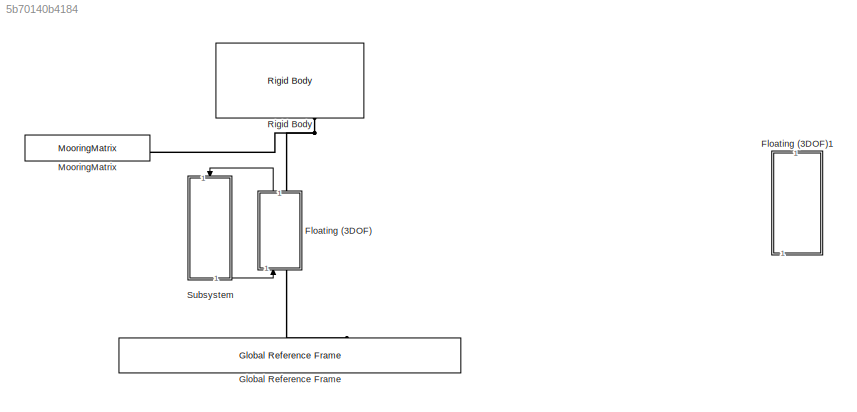
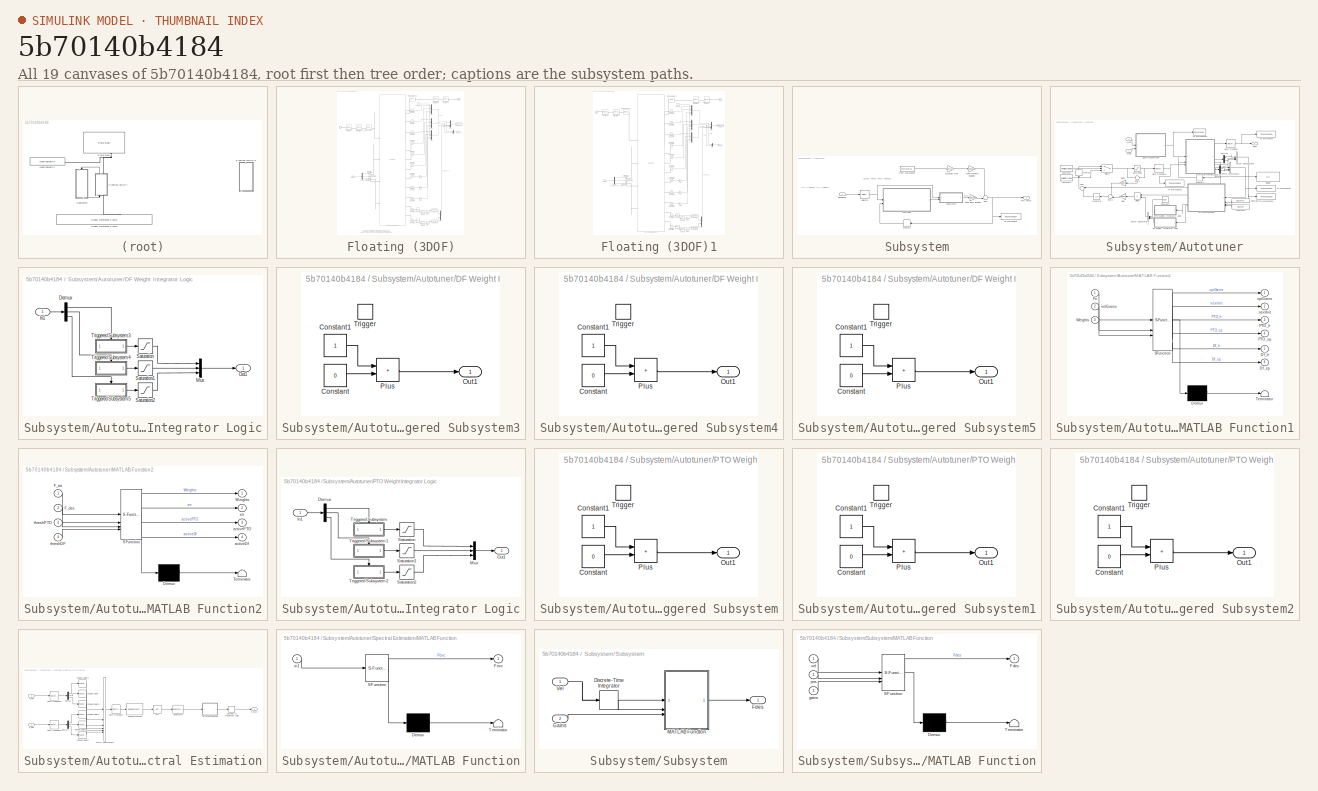
[diagram: thumbnail index - all 19 canvases of the model, root first then tree order]
MODEL slx_5b70140b4184
KIND model
CONFIG AbsTol = auto
CONFIG EnableMultiTasking = off
CONFIG FixedStep = 0.01
CONFIG MaxStep = 0.01
CONFIG MinStep = auto
CONFIG RelTol = 1e-3
CONFIG SampleTimeConstraint = Unconstrained
CONFIG SolverName = ode45
CONFIG StartTime = 0
CONFIG StopTime = 1200
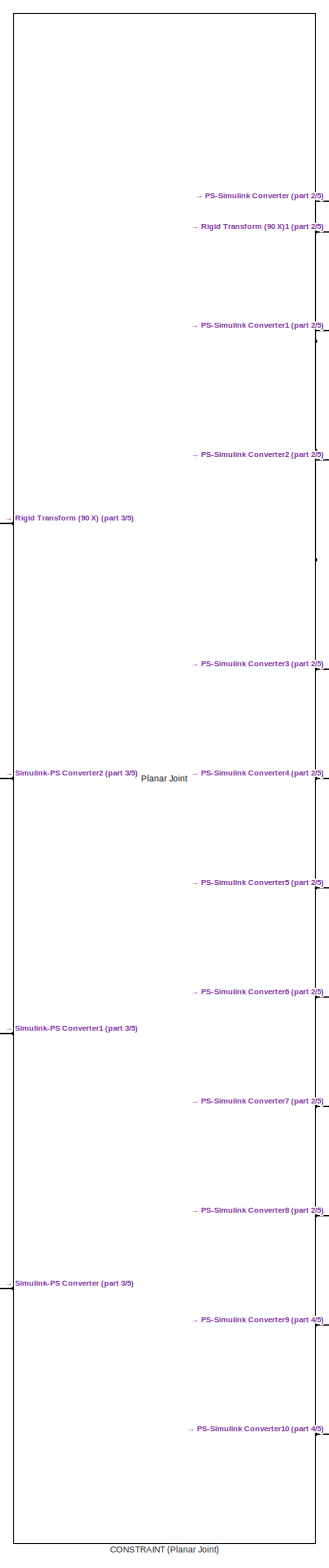
[diagram: Floating (3DOF) - part 1/5, center side, full height]
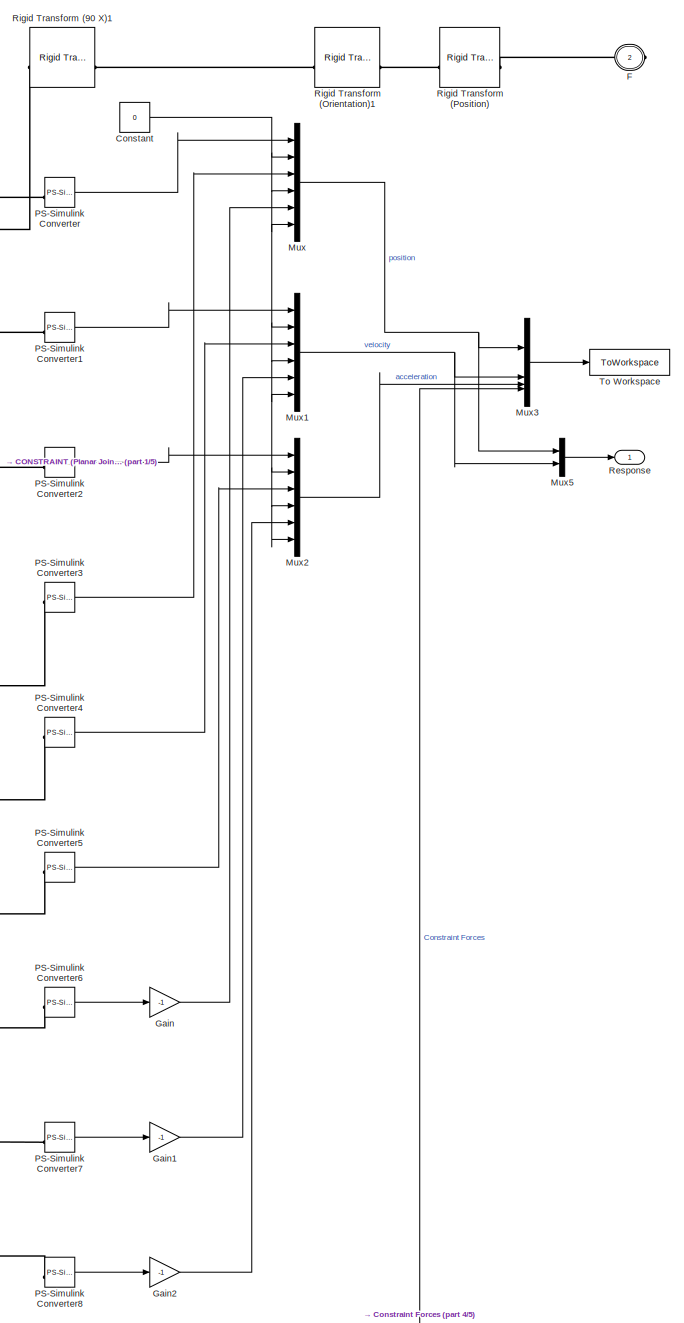
[diagram: Floating (3DOF) - part 2/5, right side, full height]
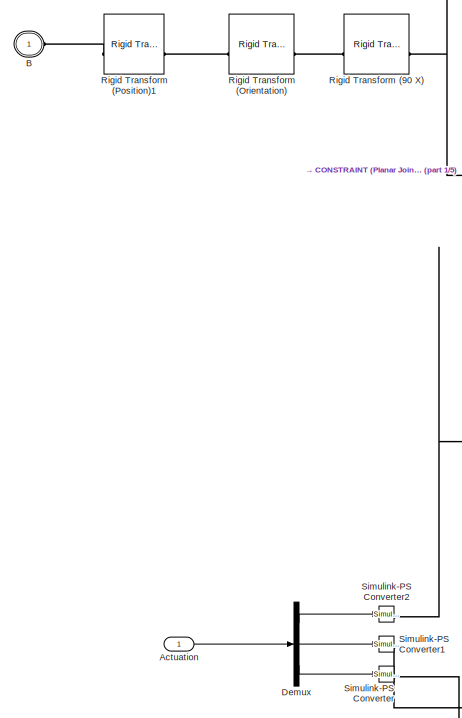
[diagram: Floating (3DOF) - part 3/5, middle left region]
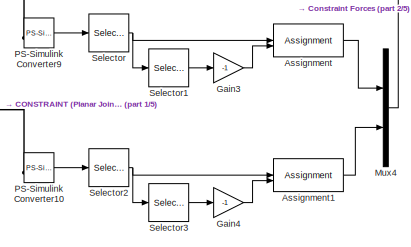
[diagram: Floating (3DOF) - part 4/5, bottom right region]
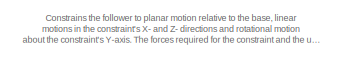
[diagram: Floating (3DOF) - part 5/5, bottom left region]
BLOCK [SubSystem] Floating (3DOF)
  AncestorBlock = WECSim_Lib_Constraints/Floating (3DOF)
  AttributesFormatString = %<constraint>
  LibrarySourceBlock = WECSim_Lib_Constraints/Floating (3DOF)
  NameLocation = right
BLOCK [Inport] Floating (3DOF)/Actuation
BLOCK [Assignment] Floating (3DOF)/Assignment
  DiagnosticForDimensions = Warning
  IndexOptions = Index vector (dialog)
  Indices = 2
  OutputSizes = 1
BLOCK [Assignment] Floating (3DOF)/Assignment1
  DiagnosticForDimensions = Warning
  IndexOptions = Index vector (dialog)
  Indices = 2
  OutputSizes = 1
BLOCK [PMIOPort] Floating (3DOF)/B
  Side = Left
BLOCK [Reference] Floating (3DOF)/CONSTRAINT (Planar Joint)  REF=sm_lib/Joints/Planar Joint
  SourceBlock = sm_lib/Joints/Planar Joint
  SourceType = Planar Joint
BLOCK [Constant] Floating (3DOF)/Constant
  Value = 0
BLOCK [Demux] Floating (3DOF)/Demux
  Outputs = 3
BLOCK [PMIOPort] Floating (3DOF)/F
  Port = 2
  Side = Right
BLOCK [Gain] Floating (3DOF)/Gain
  Gain = -1
BLOCK [Gain] Floating (3DOF)/Gain1
  Gain = -1
BLOCK [Gain] Floating (3DOF)/Gain2
  Gain = -1
BLOCK [Gain] Floating (3DOF)/Gain3
  Gain = -1
BLOCK [Gain] Floating (3DOF)/Gain4
  Gain = -1
BLOCK [Mux] Floating (3DOF)/Mux
  DisplayOption = bar
  Inputs = 6
BLOCK [Mux] Floating (3DOF)/Mux1
  DisplayOption = bar
  Inputs = 6
BLOCK [Mux] Floating (3DOF)/Mux2
  DisplayOption = bar
  Inputs = 6
BLOCK [Mux] Floating (3DOF)/Mux3
  DisplayOption = bar
BLOCK [Mux] Floating (3DOF)/Mux4
  DisplayOption = bar
  Inputs = 2
BLOCK [Mux] Floating (3DOF)/Mux5
  DisplayOption = bar
  Inputs = 2
BLOCK [Reference] Floating (3DOF)/PS-Simulink Converter  REF=nesl_utility/PS-Simulink
Converter
  SourceBlock = nesl_utility/PS-Simulink\nConverter
  SourceType = PS-Simulink\nConverter
BLOCK [Reference] Floating (3DOF)/PS-Simulink Converter1  REF=nesl_utility/PS-Simulink
Converter
  SourceBlock = nesl_utility/PS-Simulink\nConverter
  SourceType = PS-Simulink\nConverter
BLOCK [Reference] Floating (3DOF)/PS-Simulink Converter10  REF=nesl_utility/PS-Simulink
Converter
  SourceBlock = nesl_utility/PS-Simulink\nConverter
  SourceType = PS-Simulink\nConverter
BLOCK [Reference] Floating (3DOF)/PS-Simulink Converter2  REF=nesl_utility/PS-Simulink
Converter
  SourceBlock = nesl_utility/PS-Simulink\nConverter
  SourceType = PS-Simulink\nConverter
BLOCK [Reference] Floating (3DOF)/PS-Simulink Converter3  REF=nesl_utility/PS-Simulink
Converter
  SourceBlock = nesl_utility/PS-Simulink\nConverter
  SourceType = PS-Simulink\nConverter
BLOCK [Reference] Floating (3DOF)/PS-Simulink Converter4  REF=nesl_utility/PS-Simulink
Converter
  SourceBlock = nesl_utility/PS-Simulink\nConverter
  SourceType = PS-Simulink\nConverter
BLOCK [Reference] Floating (3DOF)/PS-Simulink Converter5  REF=nesl_utility/PS-Simulink
Converter
  SourceBlock = nesl_utility/PS-Simulink\nConverter
  SourceType = PS-Simulink\nConverter
BLOCK [Reference] Floating (3DOF)/PS-Simulink Converter6  REF=nesl_utility/PS-Simulink
Converter
  SourceBlock = nesl_utility/PS-Simulink\nConverter
  SourceType = PS-Simulink\nConverter
BLOCK [Reference] Floating (3DOF)/PS-Simulink Converter7  REF=nesl_utility/PS-Simulink
Converter
  SourceBlock = nesl_utility/PS-Simulink\nConverter
  SourceType = PS-Simulink\nConverter
BLOCK [Reference] Floating (3DOF)/PS-Simulink Converter8  REF=nesl_utility/PS-Simulink
Converter
  SourceBlock = nesl_utility/PS-Simulink\nConverter
  SourceType = PS-Simulink\nConverter
BLOCK [Reference] Floating (3DOF)/PS-Simulink Converter9  REF=nesl_utility/PS-Simulink
Converter
  SourceBlock = nesl_utility/PS-Simulink\nConverter
  SourceType = PS-Simulink\nConverter
BLOCK [Outport] Floating (3DOF)/Response
BLOCK [Reference] Floating (3DOF)/Rigid Transform (90 X)  REF=sm_lib/Frames and
Transforms/Rigid
Transform
  SourceBlock = sm_lib/Frames and\nTransforms/Rigid\nTransform
  SourceType = Rigid\nTransform
BLOCK [Reference] Floating (3DOF)/Rigid Transform (90 X)1  REF=sm_lib/Frames and
Transforms/Rigid
Transform
  SourceBlock = sm_lib/Frames and\nTransforms/Rigid\nTransform
  SourceType = Rigid\nTransform
BLOCK [Reference] Floating (3DOF)/Rigid Transform (Orientation)  REF=sm_lib/Frames and
Transforms/Rigid
Transform
  SourceBlock = sm_lib/Frames and\nTransforms/Rigid\nTransform
  SourceType = Rigid\nTransform
BLOCK [Reference] Floating (3DOF)/Rigid Transform (Orientation)1  REF=sm_lib/Frames and
Transforms/Rigid
Transform
  SourceBlock = sm_lib/Frames and\nTransforms/Rigid\nTransform
  SourceType = Rigid\nTransform
BLOCK [Reference] Floating (3DOF)/Rigid Transform (Position)  REF=sm_lib/Frames and
Transforms/Rigid
Transform
  SourceBlock = sm_lib/Frames and\nTransforms/Rigid\nTransform
  SourceType = Rigid\nTransform
BLOCK [Reference] Floating (3DOF)/Rigid Transform (Position)1  REF=sm_lib/Frames and
Transforms/Rigid
Transform
  SourceBlock = sm_lib/Frames and\nTransforms/Rigid\nTransform
  SourceType = Rigid\nTransform
BLOCK [Selector] Floating (3DOF)/Selector
  IndexOptions = Index vector (dialog)
  Indices = [1 3 2]
  InputPortWidth = 3
  OutputSizes = 1
BLOCK [Selector] Floating (3DOF)/Selector1
  IndexOptions = Index vector (dialog)
  Indices = [2]
  InputPortWidth = 3
  OutputSizes = 1
BLOCK [Selector] Floating (3DOF)/Selector2
  IndexOptions = Index vector (dialog)
  Indices = [1 3 2]
  InputPortWidth = 3
  OutputSizes = 1
BLOCK [Selector] Floating (3DOF)/Selector3
  IndexOptions = Index vector (dialog)
  Indices = [2]
  InputPortWidth = 3
  OutputSizes = 1
BLOCK [Reference] Floating (3DOF)/Simulink-PS Converter  REF=nesl_utility/Simulink-PS
Converter
  SourceBlock = nesl_utility/Simulink-PS\nConverter
  SourceType = Simulink-PS\nConverter
BLOCK [Reference] Floating (3DOF)/Simulink-PS Converter1  REF=nesl_utility/Simulink-PS
Converter
  SourceBlock = nesl_utility/Simulink-PS\nConverter
  SourceType = Simulink-PS\nConverter
BLOCK [Reference] Floating (3DOF)/Simulink-PS Converter2  REF=nesl_utility/Simulink-PS
Converter
  SourceBlock = nesl_utility/Simulink-PS\nConverter
  SourceType = Simulink-PS\nConverter
BLOCK [ToWorkspace] Floating (3DOF)/To Workspace
  FixptAsFi = on
  MaxDataPoints = inf
  SampleTime = simu.dtOut
  SaveFormat = Structure With Time
  VariableName = constraint1_out
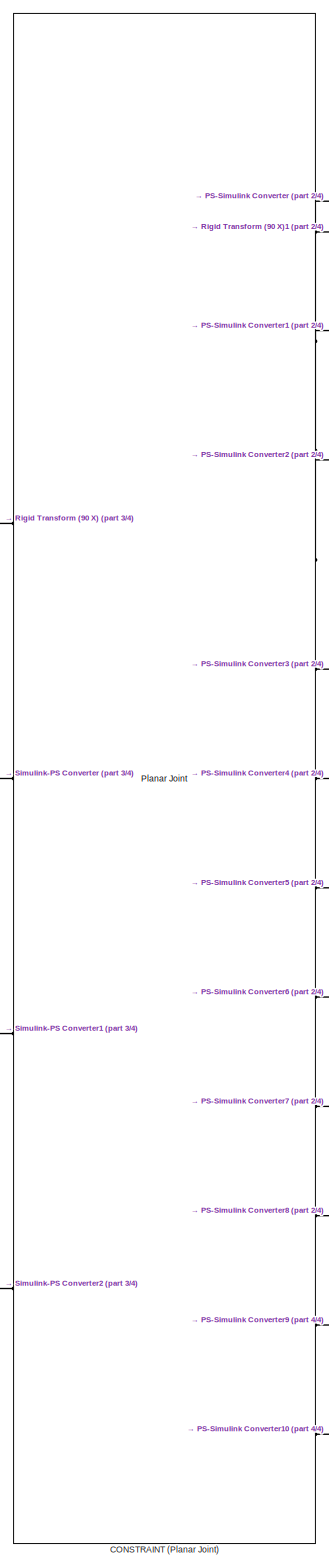
[diagram: Floating (3DOF)1 - part 1/4, center side, full height]
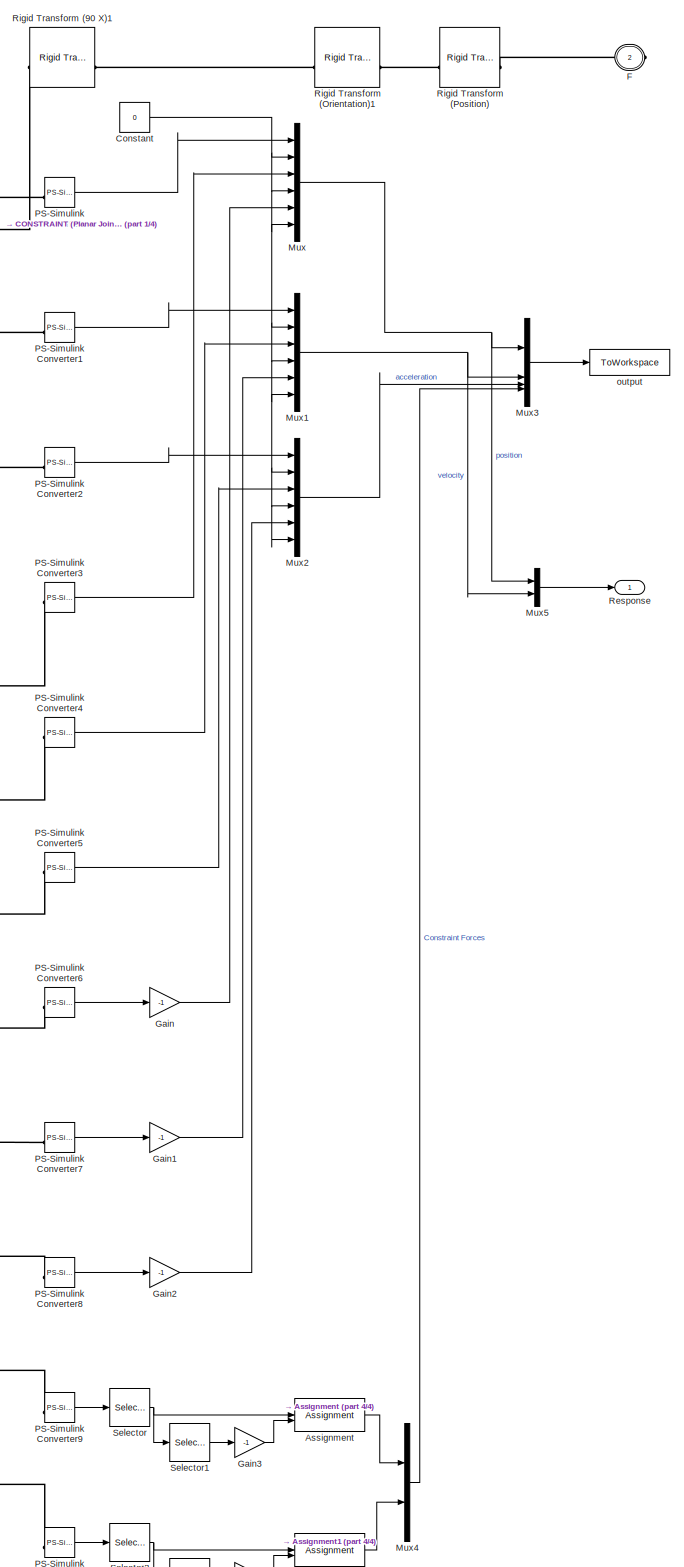
[diagram: Floating (3DOF)1 - part 2/4, right side, full height]
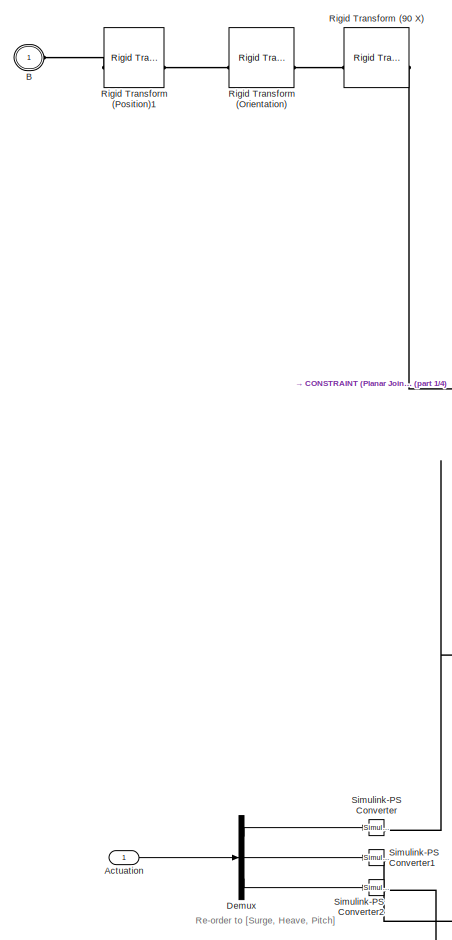
[diagram: Floating (3DOF)1 - part 3/4, middle left region]
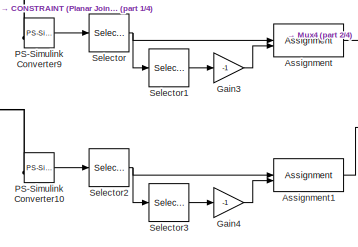
[diagram: Floating (3DOF)1 - part 4/4, bottom right region]
BLOCK [SubSystem] Floating (3DOF)1
  AncestorBlock = WECSim_Lib/Constraints/Floating (3DOF)
  AttributesFormatString = %<constraint>
  Commented = on
  LibrarySourceBlock = WECSim_Lib/Constraints/Floating (3DOF)
  NameLocation = right
BLOCK [Inport] Floating (3DOF)1/Actuation
BLOCK [Assignment] Floating (3DOF)1/Assignment
  DiagnosticForDimensions = Warning
  IndexOptions = Index vector (dialog)
  Indices = 2
  OutputSizes = 1
BLOCK [Assignment] Floating (3DOF)1/Assignment1
  DiagnosticForDimensions = Warning
  IndexOptions = Index vector (dialog)
  Indices = 2
  OutputSizes = 1
BLOCK [PMIOPort] Floating (3DOF)1/B
  Side = Left
BLOCK [Reference] Floating (3DOF)1/CONSTRAINT (Planar Joint)  REF=sm_lib/Joints/Planar Joint
  SourceBlock = sm_lib/Joints/Planar Joint
  SourceType = Planar Joint
BLOCK [Constant] Floating (3DOF)1/Constant
  Value = 0
BLOCK [Demux] Floating (3DOF)1/Demux
  Outputs = 3
BLOCK [PMIOPort] Floating (3DOF)1/F
  Port = 2
  Side = Right
BLOCK [Gain] Floating (3DOF)1/Gain
  Gain = -1
BLOCK [Gain] Floating (3DOF)1/Gain1
  Gain = -1
BLOCK [Gain] Floating (3DOF)1/Gain2
  Gain = -1
BLOCK [Gain] Floating (3DOF)1/Gain3
  Gain = -1
BLOCK [Gain] Floating (3DOF)1/Gain4
  Gain = -1
BLOCK [Mux] Floating (3DOF)1/Mux
  DisplayOption = bar
  Inputs = 6
BLOCK [Mux] Floating (3DOF)1/Mux1
  DisplayOption = bar
  Inputs = 6
BLOCK [Mux] Floating (3DOF)1/Mux2
  DisplayOption = bar
  Inputs = 6
BLOCK [Mux] Floating (3DOF)1/Mux3
  DisplayOption = bar
BLOCK [Mux] Floating (3DOF)1/Mux4
  DisplayOption = bar
  Inputs = 2
BLOCK [Mux] Floating (3DOF)1/Mux5
  DisplayOption = bar
  Inputs = 2
BLOCK [Reference] Floating (3DOF)1/PS-Simulink Converter  REF=nesl_utility/PS-Simulink
Converter
  SourceBlock = nesl_utility/PS-Simulink\nConverter
  SourceType = PS-Simulink\nConverter
BLOCK [Reference] Floating (3DOF)1/PS-Simulink Converter1  REF=nesl_utility/PS-Simulink
Converter
  SourceBlock = nesl_utility/PS-Simulink\nConverter
  SourceType = PS-Simulink\nConverter
BLOCK [Reference] Floating (3DOF)1/PS-Simulink Converter10  REF=nesl_utility/PS-Simulink
Converter
  SourceBlock = nesl_utility/PS-Simulink\nConverter
  SourceType = PS-Simulink\nConverter
BLOCK [Reference] Floating (3DOF)1/PS-Simulink Converter2  REF=nesl_utility/PS-Simulink
Converter
  SourceBlock = nesl_utility/PS-Simulink\nConverter
  SourceType = PS-Simulink\nConverter
BLOCK [Reference] Floating (3DOF)1/PS-Simulink Converter3  REF=nesl_utility/PS-Simulink
Converter
  SourceBlock = nesl_utility/PS-Simulink\nConverter
  SourceType = PS-Simulink\nConverter
BLOCK [Reference] Floating (3DOF)1/PS-Simulink Converter4  REF=nesl_utility/PS-Simulink
Converter
  SourceBlock = nesl_utility/PS-Simulink\nConverter
  SourceType = PS-Simulink\nConverter
BLOCK [Reference] Floating (3DOF)1/PS-Simulink Converter5  REF=nesl_utility/PS-Simulink
Converter
  SourceBlock = nesl_utility/PS-Simulink\nConverter
  SourceType = PS-Simulink\nConverter
BLOCK [Reference] Floating (3DOF)1/PS-Simulink Converter6  REF=nesl_utility/PS-Simulink
Converter
  SourceBlock = nesl_utility/PS-Simulink\nConverter
  SourceType = PS-Simulink\nConverter
BLOCK [Reference] Floating (3DOF)1/PS-Simulink Converter7  REF=nesl_utility/PS-Simulink
Converter
  SourceBlock = nesl_utility/PS-Simulink\nConverter
  SourceType = PS-Simulink\nConverter
BLOCK [Reference] Floating (3DOF)1/PS-Simulink Converter8  REF=nesl_utility/PS-Simulink
Converter
  SourceBlock = nesl_utility/PS-Simulink\nConverter
  SourceType = PS-Simulink\nConverter
BLOCK [Reference] Floating (3DOF)1/PS-Simulink Converter9  REF=nesl_utility/PS-Simulink
Converter
  SourceBlock = nesl_utility/PS-Simulink\nConverter
  SourceType = PS-Simulink\nConverter
BLOCK [Outport] Floating (3DOF)1/Response
BLOCK [Reference] Floating (3DOF)1/Rigid Transform (90 X)  REF=sm_lib/Frames and
Transforms/Rigid
Transform
  SourceBlock = sm_lib/Frames and\nTransforms/Rigid\nTransform
  SourceType = Rigid\nTransform
BLOCK [Reference] Floating (3DOF)1/Rigid Transform (90 X)1  REF=sm_lib/Frames and
Transforms/Rigid
Transform
  SourceBlock = sm_lib/Frames and\nTransforms/Rigid\nTransform
  SourceType = Rigid\nTransform
BLOCK [Reference] Floating (3DOF)1/Rigid Transform (Orientation)  REF=sm_lib/Frames and
Transforms/Rigid
Transform
  SourceBlock = sm_lib/Frames and\nTransforms/Rigid\nTransform
  SourceType = Rigid\nTransform
BLOCK [Reference] Floating (3DOF)1/Rigid Transform (Orientation)1  REF=sm_lib/Frames and
Transforms/Rigid
Transform
  SourceBlock = sm_lib/Frames and\nTransforms/Rigid\nTransform
  SourceType = Rigid\nTransform
BLOCK [Reference] Floating (3DOF)1/Rigid Transform (Position)  REF=sm_lib/Frames and
Transforms/Rigid
Transform
  SourceBlock = sm_lib/Frames and\nTransforms/Rigid\nTransform
  SourceType = Rigid\nTransform
BLOCK [Reference] Floating (3DOF)1/Rigid Transform (Position)1  REF=sm_lib/Frames and
Transforms/Rigid
Transform
  SourceBlock = sm_lib/Frames and\nTransforms/Rigid\nTransform
  SourceType = Rigid\nTransform
BLOCK [Selector] Floating (3DOF)1/Selector
  IndexOptions = Index vector (dialog)
  Indices = [1 3 2]
  InputPortWidth = 3
  OutputSizes = 1
BLOCK [Selector] Floating (3DOF)1/Selector1
  IndexOptions = Index vector (dialog)
  Indices = [2]
  InputPortWidth = 3
  OutputSizes = 1
BLOCK [Selector] Floating (3DOF)1/Selector2
  IndexOptions = Index vector (dialog)
  Indices = [1 3 2]
  InputPortWidth = 3
  OutputSizes = 1
BLOCK [Selector] Floating (3DOF)1/Selector3
  IndexOptions = Index vector (dialog)
  Indices = [2]
  InputPortWidth = 3
  OutputSizes = 1
BLOCK [Reference] Floating (3DOF)1/Simulink-PS Converter  REF=nesl_utility/Simulink-PS
Converter
  SourceBlock = nesl_utility/Simulink-PS\nConverter
  SourceType = Simulink-PS\nConverter
BLOCK [Reference] Floating (3DOF)1/Simulink-PS Converter1  REF=nesl_utility/Simulink-PS
Converter
  SourceBlock = nesl_utility/Simulink-PS\nConverter
  SourceType = Simulink-PS\nConverter
BLOCK [Reference] Floating (3DOF)1/Simulink-PS Converter2  REF=nesl_utility/Simulink-PS
Converter
  SourceBlock = nesl_utility/Simulink-PS\nConverter
  SourceType = Simulink-PS\nConverter
BLOCK [ToWorkspace] Floating (3DOF)1/output
  Decimation = round(simu.dtOut/simu.dt,0)
  FixptAsFi = on
  MaxDataPoints = inf
  SampleTime = -1
  SaveFormat = Structure With Time
  VariableName = constraint1_out
BLOCK [Reference] Global Reference Frame  REF=WECSim_Lib_Frames/Global Reference Frame
  NameLocation = right
  SourceBlock = WECSim_Lib_Frames/Global Reference Frame
  SourceType = Frames
BLOCK [Reference] MooringMatrix  REF=WECSim_Lib_Moorings/MooringMatrix
  AttributesFormatString = %<mooring>
  SourceBlock = WECSim_Lib_Moorings/MooringMatrix
  SourceType = Mooring Matrix
BLOCK [Reference] Rigid Body  REF=WECSim_Lib_Body_Elements/Rigid Body
  AttributesFormatString = %<body>
  NameLocation = left
  SourceBlock = WECSim_Lib_Body_Elements/Rigid Body
  SourceType = Rigid Body
BLOCK [SubSystem] Subsystem
  NameLocation = left
BLOCK [Gain] Subsystem/Actuation Gain
  Gain = OpenLoopGains
BLOCK [SubSystem] Subsystem/Autotuner
BLOCK [Constant] Subsystem/Autotuner/Constant
  Value = threshPTO
BLOCK [Constant] Subsystem/Autotuner/Constant1
  Value = threshDF
BLOCK [Constant] Subsystem/Autotuner/Constant2
  Value = WeightCase
BLOCK [Constant] Subsystem/Autotuner/Constant3
  Value = WeightAdapt
BLOCK [Constant] Subsystem/Autotuner/Constant4
  Value = [0;0;0]
BLOCK [SubSystem] Subsystem/Autotuner/DF Weight Integrator Logic
BLOCK [Demux] Subsystem/Autotuner/DF Weight Integrator Logic/Demux
  Outputs = 3
BLOCK [Inport] Subsystem/Autotuner/DF Weight Integrator Logic/In1
BLOCK [Mux] Subsystem/Autotuner/DF Weight Integrator Logic/Mux
  DisplayOption = bar
  Inputs = 3
BLOCK [Outport] Subsystem/Autotuner/DF Weight Integrator Logic/Out1
BLOCK [Saturate] Subsystem/Autotuner/DF Weight Integrator Logic/Saturation
  LowerLimit = 0
  UpperLimit = 1
BLOCK [Saturate] Subsystem/Autotuner/DF Weight Integrator Logic/Saturation1
  LowerLimit = 0
  UpperLimit = 1
BLOCK [Saturate] Subsystem/Autotuner/DF Weight Integrator Logic/Saturation2
  LowerLimit = 0
  UpperLimit = 1
BLOCK [SubSystem] Subsystem/Autotuner/DF Weight Integrator Logic/Triggered Subsystem3
  TreatAsAtomicUnit = on
BLOCK [Constant] Subsystem/Autotuner/DF Weight Integrator Logic/Triggered Subsystem3/Constant
  Value = 0
BLOCK [Constant] Subsystem/Autotuner/DF Weight Integrator Logic/Triggered Subsystem3/Constant1
BLOCK [Outport] Subsystem/Autotuner/DF Weight Integrator Logic/Triggered Subsystem3/Out1
BLOCK [Sum] Subsystem/Autotuner/DF Weight Integrator Logic/Triggered Subsystem3/Plus
  IconShape = rectangular
BLOCK [TriggerPort] Subsystem/Autotuner/DF Weight Integrator Logic/Triggered Subsystem3/Trigger
  StatesWhenEnabling = held
  VariantControl = Variant
BLOCK [SubSystem] Subsystem/Autotuner/DF Weight Integrator Logic/Triggered Subsystem4
  TreatAsAtomicUnit = on
BLOCK [Constant] Subsystem/Autotuner/DF Weight Integrator Logic/Triggered Subsystem4/Constant
  Value = 0
BLOCK [Constant] Subsystem/Autotuner/DF Weight Integrator Logic/Triggered Subsystem4/Constant1
BLOCK [Outport] Subsystem/Autotuner/DF Weight Integrator Logic/Triggered Subsystem4/Out1
BLOCK [Sum] Subsystem/Autotuner/DF Weight Integrator Logic/Triggered Subsystem4/Plus
  IconShape = rectangular
BLOCK [TriggerPort] Subsystem/Autotuner/DF Weight Integrator Logic/Triggered Subsystem4/Trigger
  StatesWhenEnabling = held
  VariantControl = Variant
BLOCK [SubSystem] Subsystem/Autotuner/DF Weight Integrator Logic/Triggered Subsystem5
  TreatAsAtomicUnit = on
BLOCK [Constant] Subsystem/Autotuner/DF Weight Integrator Logic/Triggered Subsystem5/Constant
  Value = 0
BLOCK [Constant] Subsystem/Autotuner/DF Weight Integrator Logic/Triggered Subsystem5/Constant1
BLOCK [Outport] Subsystem/Autotuner/DF Weight Integrator Logic/Triggered Subsystem5/Out1
BLOCK [Sum] Subsystem/Autotuner/DF Weight Integrator Logic/Triggered Subsystem5/Plus
  IconShape = rectangular
BLOCK [TriggerPort] Subsystem/Autotuner/DF Weight Integrator Logic/Triggered Subsystem5/Trigger
  StatesWhenEnabling = held
  VariantControl = Variant
BLOCK [Demux] Subsystem/Autotuner/Demux
  Outputs = 2
BLOCK [Demux] Subsystem/Autotuner/Demux1
  Outputs = 2
BLOCK [Display] Subsystem/Autotuner/Display
  Decimation = 1
BLOCK [Product] Subsystem/Autotuner/Divide
  Inputs = **
BLOCK [Inport] Subsystem/Autotuner/F_des
  Port = 2
BLOCK [Gain] Subsystem/Autotuner/Gain
  Gain = intGain
BLOCK [Gain] Subsystem/Autotuner/Gain1
  Gain = intGain
  NameLocation = top
BLOCK [Outport] Subsystem/Autotuner/Gains
BLOCK [Integrator] Subsystem/Autotuner/Integrator
  InitialCondition = zeros(3,3)
BLOCK [SubSystem] Subsystem/Autotuner/MATLAB Function1
  ErrorFcn = Stateflow.Translate.translate
  PermitHierarchicalResolution = ExplicitOnly
  SFBlockType = MATLAB Function
  TreatAsAtomicUnit = on
BLOCK [Demux] Subsystem/Autotuner/MATLAB Function1/ Demux 
  Outputs = 1
BLOCK [S-Function] Subsystem/Autotuner/MATLAB Function1/ SFunction 
  EnableBusSupport = on
  FunctionName = sf_sfun
  Parameters = K,Kt_h,Kt_sp,R_h,R_sp,T,Zi_frf_AT,gear_ratio_h,gear_ratio_sp,m,w
  PortCounts = [3 7]
  SFcnIsStateOwnerBlock = off
  SFunctionDeploymentMode = off
  Tag = Stateflow S-Function 4
BLOCK [Terminator] Subsystem/Autotuner/MATLAB Function1/ Terminator 
BLOCK [Outport] Subsystem/Autotuner/MATLAB Function1/Df_h
  Port = 5
BLOCK [Outport] Subsystem/Autotuner/MATLAB Function1/Df_sp
  Port = 6
BLOCK [Inport] Subsystem/Autotuner/MATLAB Function1/Fe
BLOCK [Outport] Subsystem/Autotuner/MATLAB Function1/PTO_h
  Port = 3
BLOCK [Outport] Subsystem/Autotuner/MATLAB Function1/PTO_sp
  Port = 4
BLOCK [Inport] Subsystem/Autotuner/MATLAB Function1/Weights
  Port = 3
BLOCK [Inport] Subsystem/Autotuner/MATLAB Function1/initGuess
  Port = 2
BLOCK [Outport] Subsystem/Autotuner/MATLAB Function1/nextInit
  Port = 2
  VectorParamsAs1DForOutWhenUnconnected = off
BLOCK [Outport] Subsystem/Autotuner/MATLAB Function1/optGains
  VectorParamsAs1DForOutWhenUnconnected = off
BLOCK [SubSystem] Subsystem/Autotuner/MATLAB Function2
  ErrorFcn = Stateflow.Translate.translate
  PermitHierarchicalResolution = ExplicitOnly
  SFBlockType = MATLAB Function
  TreatAsAtomicUnit = on
BLOCK [Demux] Subsystem/Autotuner/MATLAB Function2/ Demux 
  Outputs = 1
BLOCK [S-Function] Subsystem/Autotuner/MATLAB Function2/ SFunction 
  EnableBusSupport = on
  FunctionName = sf_sfun
  Parameters = adaptSlope,objCase,w
  PortCounts = [4 5]
  SFcnIsStateOwnerBlock = off
  SFunctionDeploymentMode = off
  Tag = Stateflow S-Function 5
BLOCK [Terminator] Subsystem/Autotuner/MATLAB Function2/ Terminator 
BLOCK [Inport] Subsystem/Autotuner/MATLAB Function2/F_des
  Port = 2
BLOCK [Inport] Subsystem/Autotuner/MATLAB Function2/F_tot
BLOCK [Outport] Subsystem/Autotuner/MATLAB Function2/Weights
  VectorParamsAs1DForOutWhenUnconnected = off
BLOCK [Outport] Subsystem/Autotuner/MATLAB Function2/activeDf
  Port = 4
BLOCK [Outport] Subsystem/Autotuner/MATLAB Function2/activePTO
  Port = 3
BLOCK [Outport] Subsystem/Autotuner/MATLAB Function2/err
  Port = 2
BLOCK [Inport] Subsystem/Autotuner/MATLAB Function2/threshDF
  Port = 4
BLOCK [Inport] Subsystem/Autotuner/MATLAB Function2/threshPTO
  Port = 3
BLOCK [Memory] Subsystem/Autotuner/Memory
  InheritSampleTime = on
  InitialCondition = [-1000;0;-1000;0;-200;0]
BLOCK [Memory] Subsystem/Autotuner/Memory1
  InheritSampleTime = on
  InitialCondition = [25, 0, 0; 25, 0, 0; 25, 0, 0]
  NameLocation = left
BLOCK [SubSystem] Subsystem/Autotuner/PTO Weight Integrator Logic
BLOCK [Demux] Subsystem/Autotuner/PTO Weight Integrator Logic/Demux
  Outputs = 3
BLOCK [Inport] Subsystem/Autotuner/PTO Weight Integrator Logic/In1
BLOCK [Mux] Subsystem/Autotuner/PTO Weight Integrator Logic/Mux
  DisplayOption = bar
  Inputs = 3
BLOCK [Outport] Subsystem/Autotuner/PTO Weight Integrator Logic/Out1
BLOCK [Saturate] Subsystem/Autotuner/PTO Weight Integrator Logic/Saturation
  LowerLimit = 0
  UpperLimit = 1
BLOCK [Saturate] Subsystem/Autotuner/PTO Weight Integrator Logic/Saturation1
  LowerLimit = 0
  UpperLimit = 1
BLOCK [Saturate] Subsystem/Autotuner/PTO Weight Integrator Logic/Saturation2
  LowerLimit = 0
  UpperLimit = 1
BLOCK [SubSystem] Subsystem/Autotuner/PTO Weight Integrator Logic/Triggered Subsystem
  TreatAsAtomicUnit = on
BLOCK [Constant] Subsystem/Autotuner/PTO Weight Integrator Logic/Triggered Subsystem/Constant
  Value = 0
BLOCK [Constant] Subsystem/Autotuner/PTO Weight Integrator Logic/Triggered Subsystem/Constant1
BLOCK [Outport] Subsystem/Autotuner/PTO Weight Integrator Logic/Triggered Subsystem/Out1
BLOCK [Sum] Subsystem/Autotuner/PTO Weight Integrator Logic/Triggered Subsystem/Plus
  IconShape = rectangular
BLOCK [TriggerPort] Subsystem/Autotuner/PTO Weight Integrator Logic/Triggered Subsystem/Trigger
  StatesWhenEnabling = held
  VariantControl = Variant
BLOCK [SubSystem] Subsystem/Autotuner/PTO Weight Integrator Logic/Triggered Subsystem1
  TreatAsAtomicUnit = on
BLOCK [Constant] Subsystem/Autotuner/PTO Weight Integrator Logic/Triggered Subsystem1/Constant
  Value = 0
BLOCK [Constant] Subsystem/Autotuner/PTO Weight Integrator Logic/Triggered Subsystem1/Constant1
BLOCK [Outport] Subsystem/Autotuner/PTO Weight Integrator Logic/Triggered Subsystem1/Out1
BLOCK [Sum] Subsystem/Autotuner/PTO Weight Integrator Logic/Triggered Subsystem1/Plus
  IconShape = rectangular
BLOCK [TriggerPort] Subsystem/Autotuner/PTO Weight Integrator Logic/Triggered Subsystem1/Trigger
  StatesWhenEnabling = held
  VariantControl = Variant
BLOCK [SubSystem] Subsystem/Autotuner/PTO Weight Integrator Logic/Triggered Subsystem2
  TreatAsAtomicUnit = on
BLOCK [Constant] Subsystem/Autotuner/PTO Weight Integrator Logic/Triggered Subsystem2/Constant
  Value = 0
BLOCK [Constant] Subsystem/Autotuner/PTO Weight Integrator Logic/Triggered Subsystem2/Constant1
BLOCK [Outport] Subsystem/Autotuner/PTO Weight Integrator Logic/Triggered Subsystem2/Out1
BLOCK [Sum] Subsystem/Autotuner/PTO Weight Integrator Logic/Triggered Subsystem2/Plus
  IconShape = rectangular
BLOCK [TriggerPort] Subsystem/Autotuner/PTO Weight Integrator Logic/Triggered Subsystem2/Trigger
  StatesWhenEnabling = held
  VariantControl = Variant
BLOCK [RateTransition] Subsystem/Autotuner/Rate Transition
  Deterministic = off
  OutPortSampleTime = Ts
BLOCK [RateTransition] Subsystem/Autotuner/Rate Transition4
  Deterministic = off
  InitialCondition = [25, 0, 0; 25, 0, 0; 25, 0, 0]
  OutPortSampleTime = Ts*spect.DownSample*32
BLOCK [Saturate] Subsystem/Autotuner/Saturation
  Commented = through
  LowerLimit = zeros(3,3);
  UpperLimit = [WeightCase(1,1), 0.4, 0.1; WeightCase(2,1), 0.5, 0.2; WeightCase(3,1), 0.4, 0.5];
BLOCK [SubSystem] Subsystem/Autotuner/Spectral Estimation
BLOCK [ComplexToMagnitudeAngle] Subsystem/Autotuner/Spectral Estimation/Complex to Magnitude-Angle
  Commented = through
  Output = Magnitude
BLOCK [Demux] Subsystem/Autotuner/Spectral Estimation/Demux
  Outputs = 3
BLOCK [Demux] Subsystem/Autotuner/Spectral Estimation/Demux1
  Outputs = 3
BLOCK [Reference] Subsystem/Autotuner/Spectral Estimation/FFT  REF=dspxfrm3/FFT
  SourceBlock = dspxfrm3/FFT
  SourceType = FFT
BLOCK [Inport] Subsystem/Autotuner/Spectral Estimation/F_des
  Port = 2
BLOCK [Outport] Subsystem/Autotuner/Spectral Estimation/F_excH
  VectorParamsAs1DForOutWhenUnconnected = off
BLOCK [SubSystem] Subsystem/Autotuner/Spectral Estimation/MATLAB Function
  ErrorFcn = Stateflow.Translate.translate
  PermitHierarchicalResolution = ExplicitOnly
  SFBlockType = MATLAB Function
  TreatAsAtomicUnit = on
BLOCK [Demux] Subsystem/Autotuner/Spectral Estimation/MATLAB Function/ Demux 
  Outputs = 1
BLOCK [S-Function] Subsystem/Autotuner/Spectral Estimation/MATLAB Function/ SFunction 
  EnableBusSupport = on
  FunctionName = sf_sfun
  Parameters = Zi_frf_AT
  PortCounts = [1 2]
  SFcnIsStateOwnerBlock = off
  SFunctionDeploymentMode = off
  Tag = Stateflow S-Function 3
BLOCK [Terminator] Subsystem/Autotuner/Spectral Estimation/MATLAB Function/ Terminator 
BLOCK [Outport] Subsystem/Autotuner/Spectral Estimation/MATLAB Function/Fexc
  VectorParamsAs1DForOutWhenUnconnected = off
BLOCK [Inport] Subsystem/Autotuner/Spectral Estimation/MATLAB Function/in1
BLOCK [RateTransition] Subsystem/Autotuner/Spectral Estimation/Rate Transition1
  Deterministic = off
  OutPortSampleTime = Ts*spect.DownSample
BLOCK [RateTransition] Subsystem/Autotuner/Spectral Estimation/Rate Transition2
  Deterministic = off
  OutPortSampleTime = Ts*spect.DownSample
BLOCK [RateTransition] Subsystem/Autotuner/Spectral Estimation/Rate Transition4
  Deterministic = off
  OutPortSampleTime = Ts*spect.DownSample*32
BLOCK [Reference] Subsystem/Autotuner/Spectral Estimation/Submatrix  REF=matrix_library/Submatrix
  SourceBlock = matrix_library/Submatrix
  SourceType = Submatrix
BLOCK [Reference] Subsystem/Autotuner/Spectral Estimation/Tapped Delay  REF=simulink/Discrete/Tapped Delay
  SourceBlock = simulink/Discrete/Tapped Delay
  SourceType = Tapped Delay Line
BLOCK [Reference] Subsystem/Autotuner/Spectral Estimation/Tapped Delay1  REF=simulink/Discrete/Tapped Delay
  SourceBlock = simulink/Discrete/Tapped Delay
  SourceType = Tapped Delay Line
BLOCK [Reference] Subsystem/Autotuner/Spectral Estimation/Tapped Delay2  REF=simulink/Discrete/Tapped Delay
  SourceBlock = simulink/Discrete/Tapped Delay
  SourceType = Tapped Delay Line
BLOCK [Reference] Subsystem/Autotuner/Spectral Estimation/Tapped Delay3  REF=simulink/Discrete/Tapped Delay
  SourceBlock = simulink/Discrete/Tapped Delay
  SourceType = Tapped Delay Line
BLOCK [Reference] Subsystem/Autotuner/Spectral Estimation/Tapped Delay4  REF=simulink/Discrete/Tapped Delay
  SourceBlock = simulink/Discrete/Tapped Delay
  SourceType = Tapped Delay Line
BLOCK [Reference] Subsystem/Autotuner/Spectral Estimation/Tapped Delay5  REF=simulink/Discrete/Tapped Delay
  SourceBlock = simulink/Discrete/Tapped Delay
  SourceType = Tapped Delay Line
BLOCK [Inport] Subsystem/Autotuner/Spectral Estimation/V_enc
BLOCK [Concatenate] Subsystem/Autotuner/Spectral Estimation/Vector Concatenate
  ConcatenateDimension = 2
  Mode = Multidimensional array
  NumInputs = 6
BLOCK [Reference] Subsystem/Autotuner/Spectral Estimation/Window Function  REF=dspsigops/Window
Function
  SourceBlock = dspsigops/Window\nFunction
  SourceType = Window Function
BLOCK [Sum] Subsystem/Autotuner/Sum
  Inputs = |++
BLOCK [Sum] Subsystem/Autotuner/Sum1
  Inputs = -+
  NameLocation = left
BLOCK [Sum] Subsystem/Autotuner/Sum2
  Inputs = ++|
  NameLocation = top
BLOCK [Switch] Subsystem/Autotuner/Switch
  Criteria = u2 > Threshold
  InputSameDT = off
  SaturateOnIntegerOverflow = off
BLOCK [ToWorkspace] Subsystem/Autotuner/To Workspace
  FixptAsFi = on
  MaxDataPoints = inf
  SampleTime = -1
  SaveFormat = Timeseries
  VariableName = gains
BLOCK [ToWorkspace] Subsystem/Autotuner/To Workspace1
  FixptAsFi = on
  MaxDataPoints = inf
  SampleTime = -1
  SaveFormat = Timeseries
  VariableName = F_PTO
BLOCK [ToWorkspace] Subsystem/Autotuner/To Workspace2
  FixptAsFi = on
  MaxDataPoints = inf
  SampleTime = -1
  SaveFormat = Timeseries
  VariableName = F_TOT
BLOCK [ToWorkspace] Subsystem/Autotuner/To Workspace3
  FixptAsFi = on
  MaxDataPoints = inf
  SampleTime = -1
  SaveFormat = Timeseries
  VariableName = WEIGHTS
BLOCK [ToWorkspace] Subsystem/Autotuner/To Workspace6
  FixptAsFi = on
  MaxDataPoints = inf
  SampleTime = -1
  SaveFormat = Timeseries
  VariableName = FexcOut
BLOCK [Inport] Subsystem/Autotuner/V_enc
BLOCK [Concatenate] Subsystem/Autotuner/Vector Concatenate
  NumInputs = 3
BLOCK [Concatenate] Subsystem/Autotuner/Vector Concatenate1
  NumInputs = 3
BLOCK [Concatenate] Subsystem/Autotuner/Vector Concatenate2
  ConcatenateDimension = 2
  Mode = Multidimensional array
  NumInputs = 3
BLOCK [Gain] Subsystem/Feed Back Enable?
  Gain = FBEnable
BLOCK [Gain] Subsystem/Feed Forward Enable?
  Gain = FFEnable
BLOCK [FromWorkspace] Subsystem/From Workspace
  VariableName = multisine
BLOCK [Memory] Subsystem/Memory
BLOCK [Outport] Subsystem/PTO Force
BLOCK [Inport] Subsystem/Response
BLOCK [Selector] Subsystem/Selector
  IndexOptions = Index vector (dialog)
  Indices = [7 9 11]
  InputPortWidth = 12
  OutputSizes = 1
BLOCK [SubSystem] Subsystem/Subsystem
BLOCK [DiscreteIntegrator] Subsystem/Subsystem/Discrete-Time Integrator
  ICPrevOutput = DiscIntNeverNeededParam
  ICPrevScaledInput = DiscIntNeverNeededParam
  InitialCondition = [0;0;0]
  InitialConditionSetting = Auto
  SampleTime = -1
BLOCK [Outport] Subsystem/Subsystem/Fdes
BLOCK [Inport] Subsystem/Subsystem/Gains
  Port = 2
BLOCK [SubSystem] Subsystem/Subsystem/MATLAB Function
  ErrorFcn = Stateflow.Translate.translate
  PermitHierarchicalResolution = ExplicitOnly
  SFBlockType = MATLAB Function
  TreatAsAtomicUnit = on
BLOCK [Demux] Subsystem/Subsystem/MATLAB Function/ Demux 
  Outputs = 1
BLOCK [S-Function] Subsystem/Subsystem/MATLAB Function/ SFunction 
  EnableBusSupport = on
  FunctionName = sf_sfun
  PortCounts = [3 2]
  SFcnIsStateOwnerBlock = off
  SFunctionDeploymentMode = off
  Tag = Stateflow S-Function 1
BLOCK [Terminator] Subsystem/Subsystem/MATLAB Function/ Terminator 
BLOCK [Outport] Subsystem/Subsystem/MATLAB Function/Fdes
BLOCK [Inport] Subsystem/Subsystem/MATLAB Function/gains
  Port = 3
BLOCK [Inport] Subsystem/Subsystem/MATLAB Function/pos
  Port = 2
BLOCK [Inport] Subsystem/Subsystem/MATLAB Function/vel
BLOCK [Inport] Subsystem/Subsystem/Vel
BLOCK [Sum] Subsystem/Sum
  Inputs = ++|
BLOCK [ToWorkspace] Subsystem/To Workspace
  FixptAsFi = on
  MaxDataPoints = inf
  SampleTime = -1
  SaveFormat = Timeseries
  VariableName = F_actuation
ANNOTATION Floating (3DOF): Constrains the follower to planar motion relative to the base, linear motions in the constraint's X- and Z- directions and rotational motion about the constraint's Y-axis. The forces required for the constraint and the updated response are output of the joint, converted to Simulink, assigned to the correct dimension for wecSim, and output.
ANNOTATION Floating (3DOF)1: Re-order to [Surge, Heave, Pitch]
ANNOTATION Subsystem: [6 x 1 Position; 6 x 1 Velocity]
ANNOTATION Subsystem: [Surge, Heave, Pitch] Velocities
LINE Floating (3DOF):1 -> Subsystem:1
LINE Subsystem/Actuation Gain:1 -> Subsystem/Feed Forward Enable?:1
LINE Subsystem/Autotuner/Constant1:1 -> Subsystem/Autotuner/MATLAB Function2:4
LINE Subsystem/Autotuner/Constant2:1 -> Subsystem/Autotuner/Switch:3
LINE Subsystem/Autotuner/Constant3:1 -> Subsystem/Autotuner/Switch:2
LINE Subsystem/Autotuner/Constant4:1 -> Subsystem/Autotuner/Vector Concatenate2:1
LINE Subsystem/Autotuner/Constant:1 -> Subsystem/Autotuner/MATLAB Function2:3
LINE Subsystem/Autotuner/DF Weight Integrator Logic/Demux:1 -> Subsystem/Autotuner/DF Weight Integrator Logic/Triggered Subsystem3:trigger
LINE Subsystem/Autotuner/DF Weight Integrator Logic/Demux:2 -> Subsystem/Autotuner/DF Weight Integrator Logic/Triggered Subsystem4:trigger
LINE Subsystem/Autotuner/DF Weight Integrator Logic/Demux:3 -> Subsystem/Autotuner/DF Weight Integrator Logic/Triggered Subsystem5:trigger
LINE Subsystem/Autotuner/DF Weight Integrator Logic/In1:1 -> Subsystem/Autotuner/DF Weight Integrator Logic/Demux:1
LINE Subsystem/Autotuner/DF Weight Integrator Logic/Mux:1 -> Subsystem/Autotuner/DF Weight Integrator Logic/Out1:1
LINE Subsystem/Autotuner/DF Weight Integrator Logic/Saturation1:1 -> Subsystem/Autotuner/DF Weight Integrator Logic/Mux:2
LINE Subsystem/Autotuner/DF Weight Integrator Logic/Saturation2:1 -> Subsystem/Autotuner/DF Weight Integrator Logic/Mux:3
LINE Subsystem/Autotuner/DF Weight Integrator Logic/Saturation:1 -> Subsystem/Autotuner/DF Weight Integrator Logic/Mux:1
LINE Subsystem/Autotuner/DF Weight Integrator Logic/Triggered Subsystem3/Constant1:1 -> Subsystem/Autotuner/DF Weight Integrator Logic/Triggered Subsystem3/Plus:1
LINE Subsystem/Autotuner/DF Weight Integrator Logic/Triggered Subsystem3/Constant:1 -> Subsystem/Autotuner/DF Weight Integrator Logic/Triggered Subsystem3/Plus:2
LINE Subsystem/Autotuner/DF Weight Integrator Logic/Triggered Subsystem3/Plus:1 -> Subsystem/Autotuner/DF Weight Integrator Logic/Triggered Subsystem3/Out1:1
LINE Subsystem/Autotuner/DF Weight Integrator Logic/Triggered Subsystem3:1 -> Subsystem/Autotuner/DF Weight Integrator Logic/Saturation:1
LINE Subsystem/Autotuner/DF Weight Integrator Logic/Triggered Subsystem4/Constant1:1 -> Subsystem/Autotuner/DF Weight Integrator Logic/Triggered Subsystem4/Plus:1
LINE Subsystem/Autotuner/DF Weight Integrator Logic/Triggered Subsystem4/Constant:1 -> Subsystem/Autotuner/DF Weight Integrator Logic/Triggered Subsystem4/Plus:2
LINE Subsystem/Autotuner/DF Weight Integrator Logic/Triggered Subsystem4/Plus:1 -> Subsystem/Autotuner/DF Weight Integrator Logic/Triggered Subsystem4/Out1:1
LINE Subsystem/Autotuner/DF Weight Integrator Logic/Triggered Subsystem4:1 -> Subsystem/Autotuner/DF Weight Integrator Logic/Saturation1:1
LINE Subsystem/Autotuner/DF Weight Integrator Logic/Triggered Subsystem5/Constant1:1 -> Subsystem/Autotuner/DF Weight Integrator Logic/Triggered Subsystem5/Plus:1
LINE Subsystem/Autotuner/DF Weight Integrator Logic/Triggered Subsystem5/Constant:1 -> Subsystem/Autotuner/DF Weight Integrator Logic/Triggered Subsystem5/Plus:2
LINE Subsystem/Autotuner/DF Weight Integrator Logic/Triggered Subsystem5/Plus:1 -> Subsystem/Autotuner/DF Weight Integrator Logic/Triggered Subsystem5/Out1:1
LINE Subsystem/Autotuner/DF Weight Integrator Logic/Triggered Subsystem5:1 -> Subsystem/Autotuner/DF Weight Integrator Logic/Saturation2:1
LINE Subsystem/Autotuner/DF Weight Integrator Logic:1 -> Subsystem/Autotuner/Vector Concatenate2:3
LINE Subsystem/Autotuner/Demux1:1 -> Subsystem/Autotuner/Vector Concatenate:1
LINE Subsystem/Autotuner/Demux1:2 -> Subsystem/Autotuner/Vector Concatenate:3
LINE Subsystem/Autotuner/Demux:1 -> Subsystem/Autotuner/Vector Concatenate1:1
LINE Subsystem/Autotuner/Demux:2 -> Subsystem/Autotuner/Vector Concatenate1:3
LINE Subsystem/Autotuner/Divide:1 -> Subsystem/Autotuner/Gain:1
LINE Subsystem/Autotuner/F_des:1 -> Subsystem/Autotuner/Spectral Estimation:2
LINE Subsystem/Autotuner/Gain1:1 -> Subsystem/Autotuner/Sum2:1
LINE Subsystem/Autotuner/Gain:1 -> Subsystem/Autotuner/Sum2:2
LINE Subsystem/Autotuner/Integrator:1 -> Subsystem/Autotuner/Sum:2
LINE Subsystem/Autotuner/MATLAB Function1:1 -> Subsystem/Autotuner/Rate Transition:1
LINE Subsystem/Autotuner/MATLAB Function1:2 -> Subsystem/Autotuner/Memory:1
LINE Subsystem/Autotuner/MATLAB Function1:3 -> Subsystem/Autotuner/Vector Concatenate:2
LINE Subsystem/Autotuner/MATLAB Function1:4 -> Subsystem/Autotuner/Demux1:1
LINE Subsystem/Autotuner/MATLAB Function1:5 -> Subsystem/Autotuner/Vector Concatenate1:2
NET Subsystem/Autotuner/MATLAB Function1:6 -> Subsystem/Autotuner/Demux:1, Subsystem/Autotuner/Display:1
LINE Subsystem/Autotuner/MATLAB Function2:1 -> Subsystem/Autotuner/Sum:1
LINE Subsystem/Autotuner/MATLAB Function2:2 -> Subsystem/Autotuner/Divide:1
LINE Subsystem/Autotuner/MATLAB Function2:3 -> Subsystem/Autotuner/PTO Weight Integrator Logic:1
LINE Subsystem/Autotuner/MATLAB Function2:4 -> Subsystem/Autotuner/DF Weight Integrator Logic:1
LINE Subsystem/Autotuner/Memory1:1 -> Subsystem/Autotuner/Switch:1
LINE Subsystem/Autotuner/Memory:1 -> Subsystem/Autotuner/MATLAB Function1:2
LINE Subsystem/Autotuner/PTO Weight Integrator Logic/Demux:1 -> Subsystem/Autotuner/PTO Weight Integrator Logic/Triggered Subsystem:trigger
LINE Subsystem/Autotuner/PTO Weight Integrator Logic/Demux:2 -> Subsystem/Autotuner/PTO Weight Integrator Logic/Triggered Subsystem1:trigger
LINE Subsystem/Autotuner/PTO Weight Integrator Logic/Demux:3 -> Subsystem/Autotuner/PTO Weight Integrator Logic/Triggered Subsystem2:trigger
LINE Subsystem/Autotuner/PTO Weight Integrator Logic/In1:1 -> Subsystem/Autotuner/PTO Weight Integrator Logic/Demux:1
LINE Subsystem/Autotuner/PTO Weight Integrator Logic/Mux:1 -> Subsystem/Autotuner/PTO Weight Integrator Logic/Out1:1
LINE Subsystem/Autotuner/PTO Weight Integrator Logic/Saturation1:1 -> Subsystem/Autotuner/PTO Weight Integrator Logic/Mux:2
LINE Subsystem/Autotuner/PTO Weight Integrator Logic/Saturation2:1 -> Subsystem/Autotuner/PTO Weight Integrator Logic/Mux:3
LINE Subsystem/Autotuner/PTO Weight Integrator Logic/Saturation:1 -> Subsystem/Autotuner/PTO Weight Integrator Logic/Mux:1
LINE Subsystem/Autotuner/PTO Weight Integrator Logic/Triggered Subsystem/Constant1:1 -> Subsystem/Autotuner/PTO Weight Integrator Logic/Triggered Subsystem/Plus:1
LINE Subsystem/Autotuner/PTO Weight Integrator Logic/Triggered Subsystem/Constant:1 -> Subsystem/Autotuner/PTO Weight Integrator Logic/Triggered Subsystem/Plus:2
LINE Subsystem/Autotuner/PTO Weight Integrator Logic/Triggered Subsystem/Plus:1 -> Subsystem/Autotuner/PTO Weight Integrator Logic/Triggered Subsystem/Out1:1
LINE Subsystem/Autotuner/PTO Weight Integrator Logic/Triggered Subsystem1/Constant1:1 -> Subsystem/Autotuner/PTO Weight Integrator Logic/Triggered Subsystem1/Plus:1
LINE Subsystem/Autotuner/PTO Weight Integrator Logic/Triggered Subsystem1/Constant:1 -> Subsystem/Autotuner/PTO Weight Integrator Logic/Triggered Subsystem1/Plus:2
LINE Subsystem/Autotuner/PTO Weight Integrator Logic/Triggered Subsystem1/Plus:1 -> Subsystem/Autotuner/PTO Weight Integrator Logic/Triggered Subsystem1/Out1:1
LINE Subsystem/Autotuner/PTO Weight Integrator Logic/Triggered Subsystem1:1 -> Subsystem/Autotuner/PTO Weight Integrator Logic/Saturation1:1
LINE Subsystem/Autotuner/PTO Weight Integrator Logic/Triggered Subsystem2/Constant1:1 -> Subsystem/Autotuner/PTO Weight Integrator Logic/Triggered Subsystem2/Plus:1
LINE Subsystem/Autotuner/PTO Weight Integrator Logic/Triggered Subsystem2/Constant:1 -> Subsystem/Autotuner/PTO Weight Integrator Logic/Triggered Subsystem2/Plus:2
LINE Subsystem/Autotuner/PTO Weight Integrator Logic/Triggered Subsystem2/Plus:1 -> Subsystem/Autotuner/PTO Weight Integrator Logic/Triggered Subsystem2/Out1:1
LINE Subsystem/Autotuner/PTO Weight Integrator Logic/Triggered Subsystem2:1 -> Subsystem/Autotuner/PTO Weight Integrator Logic/Saturation2:1
LINE Subsystem/Autotuner/PTO Weight Integrator Logic/Triggered Subsystem:1 -> Subsystem/Autotuner/PTO Weight Integrator Logic/Saturation:1
LINE Subsystem/Autotuner/PTO Weight Integrator Logic:1 -> Subsystem/Autotuner/Vector Concatenate2:2
NET Subsystem/Autotuner/Rate Transition4:1 -> Subsystem/Autotuner/MATLAB Function1:3, Subsystem/Autotuner/To Workspace3:1
NET Subsystem/Autotuner/Rate Transition:1 -> Subsystem/Autotuner/Gains:1, Subsystem/Autotuner/To Workspace:1
NET Subsystem/Autotuner/Saturation:1 -> Subsystem/Autotuner/Rate Transition4:1, Subsystem/Autotuner/Sum1:2
LINE Subsystem/Autotuner/Spectral Estimation/Complex to Magnitude-Angle:1 -> Subsystem/Autotuner/Spectral Estimation/F_excH:1
LINE Subsystem/Autotuner/Spectral Estimation/Demux1:1 -> Subsystem/Autotuner/Spectral Estimation/Tapped Delay4:1
LINE Subsystem/Autotuner/Spectral Estimation/Demux1:2 -> Subsystem/Autotuner/Spectral Estimation/Tapped Delay1:1
LINE Subsystem/Autotuner/Spectral Estimation/Demux1:3 -> Subsystem/Autotuner/Spectral Estimation/Tapped Delay5:1
LINE Subsystem/Autotuner/Spectral Estimation/Demux:1 -> Subsystem/Autotuner/Spectral Estimation/Tapped Delay2:1
LINE Subsystem/Autotuner/Spectral Estimation/Demux:2 -> Subsystem/Autotuner/Spectral Estimation/Tapped Delay:1
LINE Subsystem/Autotuner/Spectral Estimation/Demux:3 -> Subsystem/Autotuner/Spectral Estimation/Tapped Delay3:1
LINE Subsystem/Autotuner/Spectral Estimation/FFT:1 -> Subsystem/Autotuner/Spectral Estimation/Submatrix:1
LINE Subsystem/Autotuner/Spectral Estimation/F_des:1 -> Subsystem/Autotuner/Spectral Estimation/Rate Transition2:1
LINE Subsystem/Autotuner/Spectral Estimation/MATLAB Function:1 -> Subsystem/Autotuner/Spectral Estimation/Complex to Magnitude-Angle:1
LINE Subsystem/Autotuner/Spectral Estimation/Rate Transition1:1 -> Subsystem/Autotuner/Spectral Estimation/Demux:1
LINE Subsystem/Autotuner/Spectral Estimation/Rate Transition2:1 -> Subsystem/Autotuner/Spectral Estimation/Demux1:1
LINE Subsystem/Autotuner/Spectral Estimation/Rate Transition4:1 -> Subsystem/Autotuner/Spectral Estimation/Window Function:1
LINE Subsystem/Autotuner/Spectral Estimation/Submatrix:1 -> Subsystem/Autotuner/Spectral Estimation/MATLAB Function:1
LINE Subsystem/Autotuner/Spectral Estimation/Tapped Delay1:1 -> Subsystem/Autotuner/Spectral Estimation/Vector Concatenate:5
LINE Subsystem/Autotuner/Spectral Estimation/Tapped Delay2:1 -> Subsystem/Autotuner/Spectral Estimation/Vector Concatenate:1
LINE Subsystem/Autotuner/Spectral Estimation/Tapped Delay3:1 -> Subsystem/Autotuner/Spectral Estimation/Vector Concatenate:3
LINE Subsystem/Autotuner/Spectral Estimation/Tapped Delay4:1 -> Subsystem/Autotuner/Spectral Estimation/Vector Concatenate:4
LINE Subsystem/Autotuner/Spectral Estimation/Tapped Delay5:1 -> Subsystem/Autotuner/Spectral Estimation/Vector Concatenate:6
LINE Subsystem/Autotuner/Spectral Estimation/Tapped Delay:1 -> Subsystem/Autotuner/Spectral Estimation/Vector Concatenate:2
LINE Subsystem/Autotuner/Spectral Estimation/V_enc:1 -> Subsystem/Autotuner/Spectral Estimation/Rate Transition1:1
LINE Subsystem/Autotuner/Spectral Estimation/Vector Concatenate:1 -> Subsystem/Autotuner/Spectral Estimation/Rate Transition4:1
LINE Subsystem/Autotuner/Spectral Estimation/Window Function:1 -> Subsystem/Autotuner/Spectral Estimation/FFT:1
NET Subsystem/Autotuner/Spectral Estimation:1 -> Subsystem/Autotuner/MATLAB Function1:1, Subsystem/Autotuner/To Workspace6:1
LINE Subsystem/Autotuner/Sum1:1 -> Subsystem/Autotuner/Gain1:1
LINE Subsystem/Autotuner/Sum2:1 -> Subsystem/Autotuner/Integrator:1
LINE Subsystem/Autotuner/Sum:1 -> Subsystem/Autotuner/Memory1:1
NET Subsystem/Autotuner/Switch:1 -> Subsystem/Autotuner/Saturation:1, Subsystem/Autotuner/Sum1:1
LINE Subsystem/Autotuner/V_enc:1 -> Subsystem/Autotuner/Spectral Estimation:1
NET Subsystem/Autotuner/Vector Concatenate1:1 -> Subsystem/Autotuner/MATLAB Function2:1, Subsystem/Autotuner/To Workspace2:1
LINE Subsystem/Autotuner/Vector Concatenate2:1 -> Subsystem/Autotuner/Divide:2
NET Subsystem/Autotuner/Vector Concatenate:1 -> Subsystem/Autotuner/MATLAB Function2:2, Subsystem/Autotuner/To Workspace1:1
LINE Subsystem/Autotuner:1 -> Subsystem/Subsystem:2
LINE Subsystem/Feed Back Enable?:1 -> Subsystem/Sum:2
LINE Subsystem/Feed Forward Enable?:1 -> Subsystem/Sum:1
LINE Subsystem/From Workspace:1 -> Subsystem/Actuation Gain:1
LINE Subsystem/Memory:1 -> Subsystem/Autotuner:2
LINE Subsystem/Response:1 -> Subsystem/Selector:1
NET Subsystem/Selector:1 -> Subsystem/Autotuner:1, Subsystem/Subsystem:1
LINE Subsystem/Subsystem/Discrete-Time Integrator:1 -> Subsystem/Subsystem/MATLAB Function:2
LINE Subsystem/Subsystem/Gains:1 -> Subsystem/Subsystem/MATLAB Function:3
LINE Subsystem/Subsystem/MATLAB Function:1 -> Subsystem/Subsystem/Fdes:1
NET Subsystem/Subsystem/Vel:1 -> Subsystem/Subsystem/Discrete-Time Integrator:1, Subsystem/Subsystem/MATLAB Function:1
LINE Subsystem/Subsystem:1 -> Subsystem/Feed Back Enable?:1
NET Subsystem/Sum:1 -> Subsystem/Memory:1, Subsystem/PTO Force:1, Subsystem/To Workspace:1
LINE Subsystem:1 -> Floating (3DOF):1
PLINE Floating (3DOF):LConn1 -- Global Reference Frame:RConn1
PNET net1: Floating (3DOF):RConn1 -- MooringMatrix:LConn1 -- Rigid Body:RConn1
note: NET lines group one-source signal fan-out (src -> all destinations, sorted); 1:1 wires keep LINE; PNET lines group multi-terminal physical nets as a canonical sorted terminal list (undirected conserving connections); 2-terminal nets keep the pairwise PLINE form
CHART Subsystem/Subsystem/MATLAB Function states=1 transitions=1
  STATE_LABEL 'eML_blk_kernel()'
  STATE_LABEL 'SCRIPT:\nfunction Fdes = PI_D_Controller(vel,pos,gains)\n\nFdes = zeros(3,1); % initialize output\nKp = zeros(3,1);\nKi = zeros(3,1);\nD = zeros(3,1);\nK = zeros(3,1); \n\n% build control vectors\nKp(:,1) = gains(1:2:5);\nKi(:,1) = gains(2:2:6);\n\n% multiply elementwise by vel, pos\nD = Kp .* vel;\nK = Ki .* pos;\n\n% sum according to convention\nFdes = D + K;\n'
CHART Subsystem/Autotuner/Spectral Estimation/MATLAB Function states=1 transitions=1
  STATE_LABEL 'eML_blk_kernel()'
  STATE_LABEL "SCRIPT:\nfunction Fexc = fcn(in1,  Zi_frf_AT)\n\nF = in1(:,4:6);\nV = in1(:,1:3);\n\nFexc = 0*F(:,[1:3]);%zeros(1,spect.N_freq);\n\nfor ii = 1:length(Fexc)\n    \n    % use heave only estimate \n    %Fexc(ii,1) = 2 *( Y_inv(1,:,ii)*V(ii,:).' - F(ii,1).' );%* H_inv(ii,:)\n    \n    % use full estimate\n    Fexc(ii,:) = 2 *( Zi_frf_AT(:,:,ii)*V(ii,:).' - F(ii,:).' );\n    % ETA(ii) = [1,1,1]*Y_inv(:,:,ii)*V(ii,:)....<+18ch>"
CHART Subsystem/Autotuner/MATLAB Function1 states=1 transitions=1
  STATE_LABEL 'eML_blk_kernel()'
  STATE_LABEL "SCRIPT:\nfunction [optGains,nextInit, PTO_h, PTO_sp, Df_h, Df_sp] = gainOptimizer(Fe,initGuess,...\n    Kt_h,R_h, w, Zi_frf_AT, gear_ratio_h, Kt_sp, R_sp, gear_ratio_sp, m, K, T, Weights)\n% R_h = 0;\n% unfortunately we must declare options every time we run\noptions = optimset('Display','off', 'MaxFunEvals', 1e4, 'MaxIter', 1e4);%\n% further, apparently code generation cannot handle specified TolX and\n...<+3608ch>"
CHART Subsystem/Autotuner/MATLAB Function2 states=1 transitions=1
  STATE_LABEL 'eML_blk_kernel()'
  STATE_LABEL 'SCRIPT:\nfunction [Weights,err,activePTO,activeDf]  = weightTransition(F_tot, F_des, objCase, threshPTO, threshDF, w, adaptSlope)\n\n% F_des : the desired PTO force\n% F_exc : the excitation force spectra\n% objCase: Single value of set {1,2,3,4]. 1 maximize power, 2 max power and\n% limit PTO load, 3 max power and limit fatigue damage, 4 max power and\n% limit both PTO load and fatigue damage.\n% threshP...<+2902ch>'
CHART  states=0 transitions=0
CHART  states=0 transitions=0
CHART  states=0 transitions=0
CHART  states=0 transitions=0
